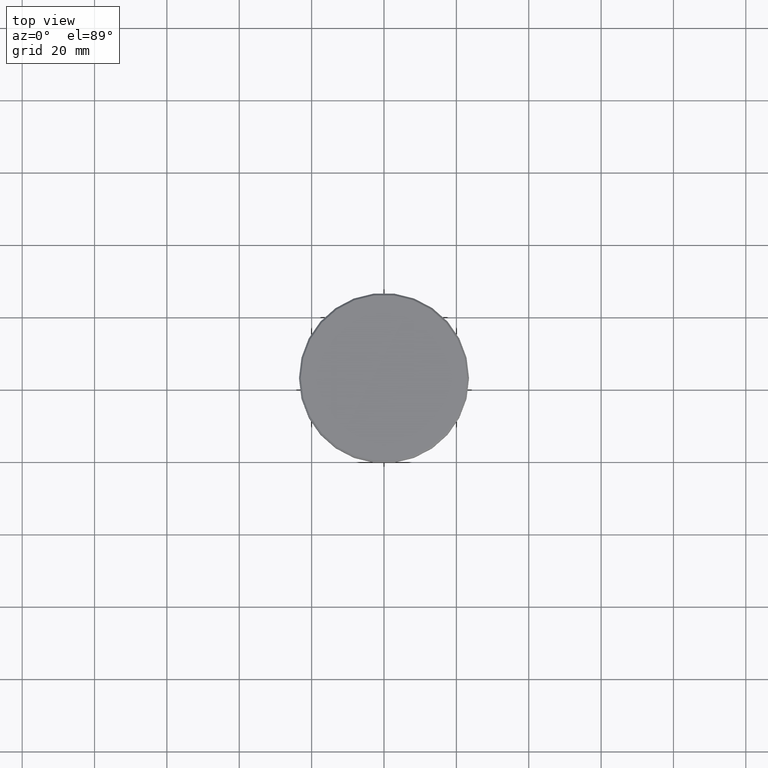
[diagram: clean part render]
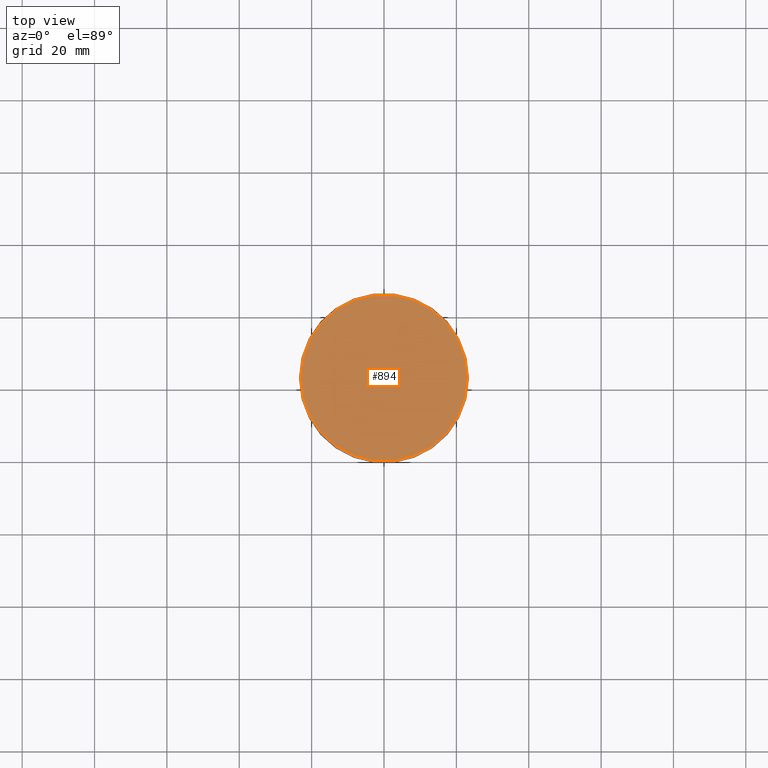
[diagram: same view with one face highlighted and labeled with its STEP entity id]
A machine part, top view. The second image highlights one B-rep face of the part: STEP entity #894.
In plain terms, the highlighted planar face has unit normal (0, -0, 1).
Its self-contained STEP definition (entity closure, byte-faithful):
#22 = CARTESIAN_POINT ( 'NONE',  ( 0.000000000000000000, 0.000000000000000000, 0.000000000000000000 ) ) ;
#38 = DIRECTION ( 'NONE',  ( 1.000000000000000000, 0.000000000000000000, 0.000000000000000000 ) ) ;
#53 = AXIS2_PLACEMENT_3D ( 'NONE', #22, #1048, #38 ) ;
#54 = CARTESIAN_POINT ( 'NONE',  ( 22.99999999999996803, 2.847303808017594561E-15, 0.000000000000000000 ) ) ;
#78 = ORIENTED_EDGE ( 'NONE', *, *, #929, .T. ) ;
#305 = CIRCLE ( 'NONE', #1121, 22.99999999999996803 ) ;
#352 = CIRCLE ( 'NONE', #372, 22.99999999999996803 ) ;
#358 = ORIENTED_EDGE ( 'NONE', *, *, #1063, .T. ) ;
#372 = AXIS2_PLACEMENT_3D ( 'NONE', #780, #1044, #414 ) ;
#414 = DIRECTION ( 'NONE',  ( 1.000000000000000000, 0.000000000000000000, 0.000000000000000000 ) ) ;
#418 = VERTEX_POINT ( 'NONE', #652 ) ;
#464 = EDGE_LOOP ( 'NONE', ( #358, #78 ) ) ;
#509 = VERTEX_POINT ( 'NONE', #54 ) ;
#533 = DIRECTION ( 'NONE',  ( 1.000000000000000000, 0.000000000000000000, 0.000000000000000000 ) ) ;
#652 = CARTESIAN_POINT ( 'NONE',  ( -22.99999999999996803, 0.000000000000000000, 0.000000000000000000 ) ) ;
#718 = CARTESIAN_POINT ( 'NONE',  ( 0.000000000000000000, 0.000000000000000000, 0.000000000000000000 ) ) ;
#780 = CARTESIAN_POINT ( 'NONE',  ( 0.000000000000000000, 0.000000000000000000, 0.000000000000000000 ) ) ;
#836 = PLANE ( 'NONE',  #53 ) ;
#877 = DIRECTION ( 'NONE',  ( -0.000000000000000000, -0.000000000000000000, 1.000000000000000000 ) ) ;
#894 = ADVANCED_FACE ( 'NONE', ( #923 ), #836, .T. ) ;
#923 = FACE_OUTER_BOUND ( 'NONE', #464, .T. ) ;
#929 = EDGE_CURVE ( 'NONE', #509, #418, #352, .T. ) ;
#1044 = DIRECTION ( 'NONE',  ( -0.000000000000000000, -0.000000000000000000, 1.000000000000000000 ) ) ;
#1048 = DIRECTION ( 'NONE',  ( 0.000000000000000000, -0.000000000000000000, 1.000000000000000000 ) ) ;
#1063 = EDGE_CURVE ( 'NONE', #418, #509, #305, .T. ) ;
#1121 = AXIS2_PLACEMENT_3D ( 'NONE', #718, #877, #533 ) ;